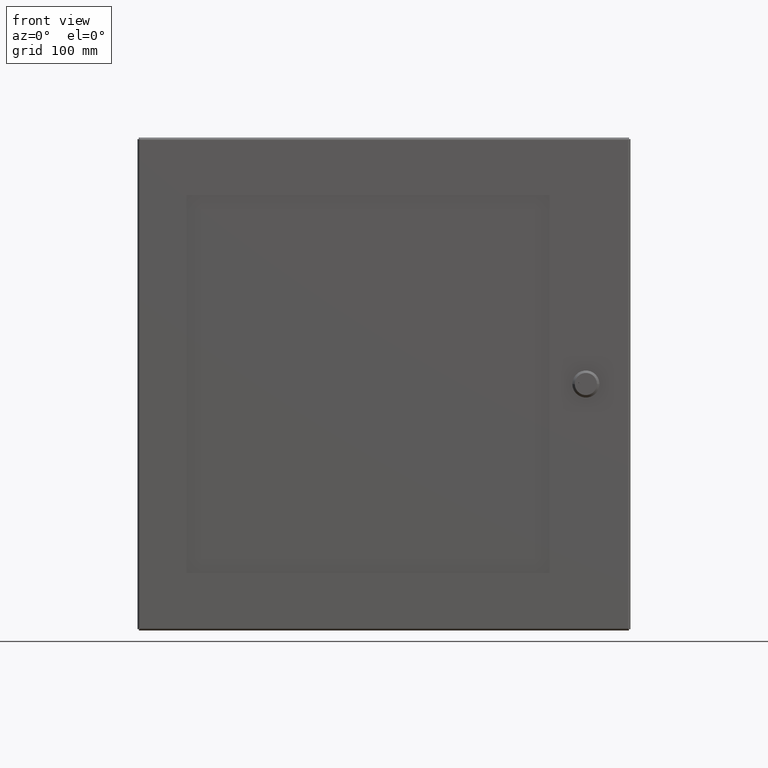
[diagram: clean part render]
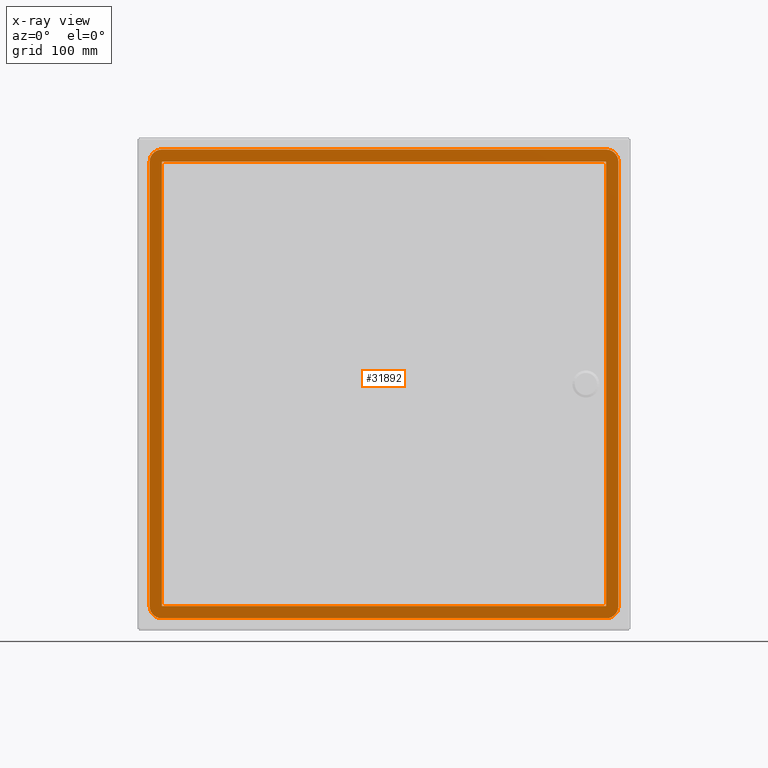
[diagram: x-ray — body ghosted, one internal face saturated and labeled with its STEP entity id]
A machine part, front view, then the same camera in x-ray: the body is ghosted and one INTERNAL B-rep face — a face not visible from any outside direction — is saturated and labeled: STEP entity #31892.
In plain terms, the highlighted planar face has unit normal (0, -1, 0).
Its self-contained STEP definition (entity closure, byte-faithful):
#147 = CARTESIAN_POINT ( 'NONE',  ( 9.011000000000038312, -8.764999999999991687, 9.511000000000004562 ) ) ;
#857 = DIRECTION ( 'NONE',  ( -1.000000000000000000, -1.217224874391407021E-15, -6.865426471331800005E-17 ) ) ;
#926 = VECTOR ( 'NONE', #15128, 39.37007874015748143 ) ;
#1440 = ORIENTED_EDGE ( 'NONE', *, *, #35928, .T. ) ;
#2185 = FACE_OUTER_BOUND ( 'NONE', #26801, .T. ) ;
#2850 = VECTOR ( 'NONE', #19822, 39.37007874015748143 ) ;
#3243 = CIRCLE ( 'NONE', #28837, 0.5000000000000126565 ) ;
#3285 = CARTESIAN_POINT ( 'NONE',  ( 9.510999999999999233, -8.764999999999989910, 9.011000000000001009 ) ) ;
#3425 = AXIS2_PLACEMENT_3D ( 'NONE', #11679, #34926, #26390 ) ;
#3673 = VERTEX_POINT ( 'NONE', #18551 ) ;
#3736 = VECTOR ( 'NONE', #34314, 39.37007874015748143 ) ;
#3819 = VERTEX_POINT ( 'NONE', #29569 ) ;
#4495 = FACE_BOUND ( 'NONE', #37110, .T. ) ;
#5017 = DIRECTION ( 'NONE',  ( 6.865426471331800005E-17, -2.445095943445276987E-31, -1.000000000000000000 ) ) ;
#5103 = LINE ( 'NONE', #28215, #2850 ) ;
#6102 = ORIENTED_EDGE ( 'NONE', *, *, #23389, .T. ) ;
#6402 = DIRECTION ( 'NONE',  ( 1.400921894263509941E-15, -1.000000000000000000, 5.109523324108258540E-32 ) ) ;
#6552 = CARTESIAN_POINT ( 'NONE',  ( 9.511000000000022325, -8.764999999999989910, 9.011000000000001009 ) ) ;
#7053 = DIRECTION ( 'NONE',  ( 1.400921894263509941E-15, -1.000000000000000000, 5.109523324108258540E-32 ) ) ;
#7152 = CARTESIAN_POINT ( 'NONE',  ( 9.010999999999961929, -8.764999999999991687, -9.511000000000031207 ) ) ;
#7240 = CARTESIAN_POINT ( 'NONE',  ( -9.011000000000041865, -8.765000000000013003, 9.010999999999999233 ) ) ;
#8146 = CARTESIAN_POINT ( 'NONE',  ( 9.010999999999995680, -8.764999999999989910, -9.011000000000024102 ) ) ;
#8200 = ORIENTED_EDGE ( 'NONE', *, *, #26223, .T. ) ;
#8265 = EDGE_CURVE ( 'NONE', #29085, #3673, #5103, .T. ) ;
#8385 = CARTESIAN_POINT ( 'NONE',  ( -9.011000000000054300, -8.765000000000013003, 9.011000000000031207 ) ) ;
#8806 = CARTESIAN_POINT ( 'NONE',  ( -9.511000000000043642, -8.765000000000013003, 9.011000000000018773 ) ) ;
#9203 = ORIENTED_EDGE ( 'NONE', *, *, #26466, .T. ) ;
#9451 = CARTESIAN_POINT ( 'NONE',  ( -9.011000000000038312, -8.765000000000013003, -9.511000000000034760 ) ) ;
#10240 = ORIENTED_EDGE ( 'NONE', *, *, #15669, .T. ) ;
#10392 = PLANE ( 'NONE',  #21203 ) ;
#10869 = LINE ( 'NONE', #36431, #3736 ) ;
#10996 = ORIENTED_EDGE ( 'NONE', *, *, #37196, .T. ) ;
#11334 = ORIENTED_EDGE ( 'NONE', *, *, #21316, .T. ) ;
#11562 = VERTEX_POINT ( 'NONE', #16086 ) ;
#11631 = VECTOR ( 'NONE', #34817, 39.37007874015748143 ) ;
#11679 = CARTESIAN_POINT ( 'NONE',  ( 9.011000000000038312, -8.764999999999991687, 9.011000000000001009 ) ) ;
#12389 = CARTESIAN_POINT ( 'NONE',  ( -9.511000000000040089, -8.765000000000013003, 9.011000000000038312 ) ) ;
#12452 = LINE ( 'NONE', #3285, #926 ) ;
#12725 = CARTESIAN_POINT ( 'NONE',  ( -9.511000000000040089, -8.765000000000013003, 9.010999999999999233 ) ) ;
#13311 = CARTESIAN_POINT ( 'NONE',  ( 9.010999999999961929, -8.764999999999991687, -9.010999999999999233 ) ) ;
#13732 = EDGE_CURVE ( 'NONE', #35799, #11562, #21318, .T. ) ;
#14040 = EDGE_CURVE ( 'NONE', #3673, #21964, #10869, .T. ) ;
#14408 = CIRCLE ( 'NONE', #3425, 0.5000000000000126565 ) ;
#14961 = ORIENTED_EDGE ( 'NONE', *, *, #27817, .T. ) ;
#15128 = DIRECTION ( 'NONE',  ( -6.865426471331800005E-17, 2.445095943445276987E-31, 1.000000000000000000 ) ) ;
#15474 = VECTOR ( 'NONE', #32033, 39.37007874015748143 ) ;
#15669 = EDGE_CURVE ( 'NONE', #11562, #34047, #3243, .T. ) ;
#16086 = CARTESIAN_POINT ( 'NONE',  ( -9.511000000000048971, -8.765000000000013003, -9.011000000000001009 ) ) ;
#18245 = AXIS2_PLACEMENT_3D ( 'NONE', #13311, #30108, #30488 ) ;
#18551 = CARTESIAN_POINT ( 'NONE',  ( -9.011000000000061405, -8.765000000000013003, -9.011000000000027654 ) ) ;
#18557 = EDGE_CURVE ( 'NONE', #23603, #28426, #18860, .T. ) ;
#18860 = CIRCLE ( 'NONE', #18245, 0.5000000000000126565 ) ;
#18910 = DIRECTION ( 'NONE',  ( 0.0000000000000000000, 0.0000000000000000000, -1.000000000000000000 ) ) ;
#19360 = LINE ( 'NONE', #19735, #26450 ) ;
#19380 = DIRECTION ( 'NONE',  ( 1.217224874391407021E-15, -1.000000000000000000, 3.280772730866305947E-31 ) ) ;
#19735 = CARTESIAN_POINT ( 'NONE',  ( 9.011000000000038312, -8.764999999999991687, 9.011000000000001009 ) ) ;
#19774 = AXIS2_PLACEMENT_3D ( 'NONE', #7240, #7053, #18910 ) ;
#19822 = DIRECTION ( 'NONE',  ( -1.000000000000000000, -1.217224874391407021E-15, -6.865426471331800005E-17 ) ) ;
#20747 = LINE ( 'NONE', #28951, #11631 ) ;
#21203 = AXIS2_PLACEMENT_3D ( 'NONE', #25124, #19380, #21878 ) ;
#21316 = EDGE_CURVE ( 'NONE', #24471, #37569, #27009, .T. ) ;
#21318 = LINE ( 'NONE', #12725, #32980 ) ;
#21878 = DIRECTION ( 'NONE',  ( 1.000000000000000000, 1.217224874391407021E-15, 6.865426471331800005E-17 ) ) ;
#21964 = VERTEX_POINT ( 'NONE', #8385 ) ;
#22302 = VERTEX_POINT ( 'NONE', #6552 ) ;
#23389 = EDGE_CURVE ( 'NONE', #34047, #23603, #20747, .T. ) ;
#23603 = VERTEX_POINT ( 'NONE', #7152 ) ;
#24255 = CARTESIAN_POINT ( 'NONE',  ( -9.011000000000041865, -8.765000000000013003, 9.511000000000008114 ) ) ;
#24471 = VERTEX_POINT ( 'NONE', #147 ) ;
#25124 = CARTESIAN_POINT ( 'NONE',  ( -9.511000000000040089, -8.765000000000013003, 9.010999999999999233 ) ) ;
#25911 = ORIENTED_EDGE ( 'NONE', *, *, #14040, .T. ) ;
#26223 = EDGE_CURVE ( 'NONE', #3819, #29085, #19360, .T. ) ;
#26390 = DIRECTION ( 'NONE',  ( 0.0000000000000000000, 0.0000000000000000000, -1.000000000000000000 ) ) ;
#26450 = VECTOR ( 'NONE', #5017, 39.37007874015748143 ) ;
#26466 = EDGE_CURVE ( 'NONE', #37569, #35799, #27077, .T. ) ;
#26768 = ORIENTED_EDGE ( 'NONE', *, *, #13732, .T. ) ;
#26801 = EDGE_LOOP ( 'NONE', ( #11334, #9203, #26768, #10240, #6102, #32946, #1440, #10996 ) ) ;
#27009 = LINE ( 'NONE', #34982, #29891 ) ;
#27077 = CIRCLE ( 'NONE', #19774, 0.5000000000000126565 ) ;
#27817 = EDGE_CURVE ( 'NONE', #21964, #3819, #32404, .T. ) ;
#28215 = CARTESIAN_POINT ( 'NONE',  ( -9.511000000000038312, -8.765000000000013003, -9.011000000000041865 ) ) ;
#28426 = VERTEX_POINT ( 'NONE', #34222 ) ;
#28837 = AXIS2_PLACEMENT_3D ( 'NONE', #32744, #6402, #33122 ) ;
#28951 = CARTESIAN_POINT ( 'NONE',  ( -9.511000000000038312, -8.765000000000013003, -9.511000000000040089 ) ) ;
#29085 = VERTEX_POINT ( 'NONE', #8146 ) ;
#29569 = CARTESIAN_POINT ( 'NONE',  ( 9.011000000000038312, -8.764999999999989910, 9.011000000000015220 ) ) ;
#29727 = ORIENTED_EDGE ( 'NONE', *, *, #8265, .T. ) ;
#29891 = VECTOR ( 'NONE', #857, 39.37007874015748143 ) ;
#30108 = DIRECTION ( 'NONE',  ( 1.400921894263509941E-15, -1.000000000000000000, 5.109523324108258540E-32 ) ) ;
#30488 = DIRECTION ( 'NONE',  ( 0.0000000000000000000, 0.0000000000000000000, -1.000000000000000000 ) ) ;
#31892 = ADVANCED_FACE ( 'NONE', ( #4495, #2185 ), #10392, .T. ) ;
#32033 = DIRECTION ( 'NONE',  ( 1.000000000000000000, 1.217224874391407021E-15, 6.865426471331800005E-17 ) ) ;
#32404 = LINE ( 'NONE', #12389, #15474 ) ;
#32744 = CARTESIAN_POINT ( 'NONE',  ( -9.011000000000038312, -8.765000000000013003, -9.011000000000001009 ) ) ;
#32917 = DIRECTION ( 'NONE',  ( 6.865426471331800005E-17, -2.445095943445276987E-31, -1.000000000000000000 ) ) ;
#32946 = ORIENTED_EDGE ( 'NONE', *, *, #18557, .T. ) ;
#32980 = VECTOR ( 'NONE', #32917, 39.37007874015748143 ) ;
#33122 = DIRECTION ( 'NONE',  ( 0.0000000000000000000, 0.0000000000000000000, -1.000000000000000000 ) ) ;
#34047 = VERTEX_POINT ( 'NONE', #9451 ) ;
#34222 = CARTESIAN_POINT ( 'NONE',  ( 9.510999999999995680, -8.764999999999989910, -9.010999999999999233 ) ) ;
#34314 = DIRECTION ( 'NONE',  ( -6.865426471331800005E-17, 2.445095943445276987E-31, 1.000000000000000000 ) ) ;
#34817 = DIRECTION ( 'NONE',  ( 1.000000000000000000, 1.217224874391407021E-15, 6.865426471331800005E-17 ) ) ;
#34926 = DIRECTION ( 'NONE',  ( 1.400921894263509941E-15, -1.000000000000000000, 5.109523324108258540E-32 ) ) ;
#34982 = CARTESIAN_POINT ( 'NONE',  ( -9.511000000000040089, -8.765000000000013003, 9.510999999999999233 ) ) ;
#35799 = VERTEX_POINT ( 'NONE', #8806 ) ;
#35928 = EDGE_CURVE ( 'NONE', #28426, #22302, #12452, .T. ) ;
#36431 = CARTESIAN_POINT ( 'NONE',  ( -9.011000000000080945, -8.765000000000013003, 9.010999999999999233 ) ) ;
#37110 = EDGE_LOOP ( 'NONE', ( #14961, #8200, #29727, #25911 ) ) ;
#37196 = EDGE_CURVE ( 'NONE', #22302, #24471, #14408, .T. ) ;
#37569 = VERTEX_POINT ( 'NONE', #24255 ) ;